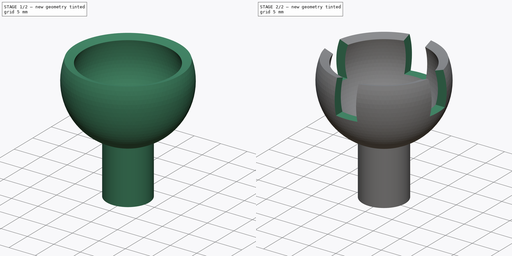
[diagram: build sequence overview — one tinted view per stage of 2, left to right]
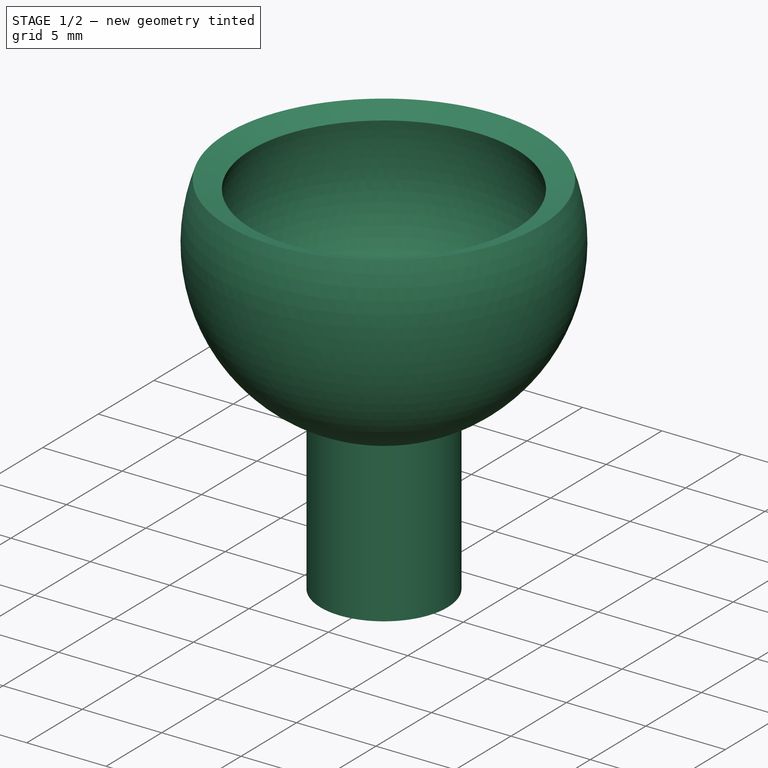
[diagram: stage 1 of 2 — iso view after this stage's code; geometry added in this stage tinted green]
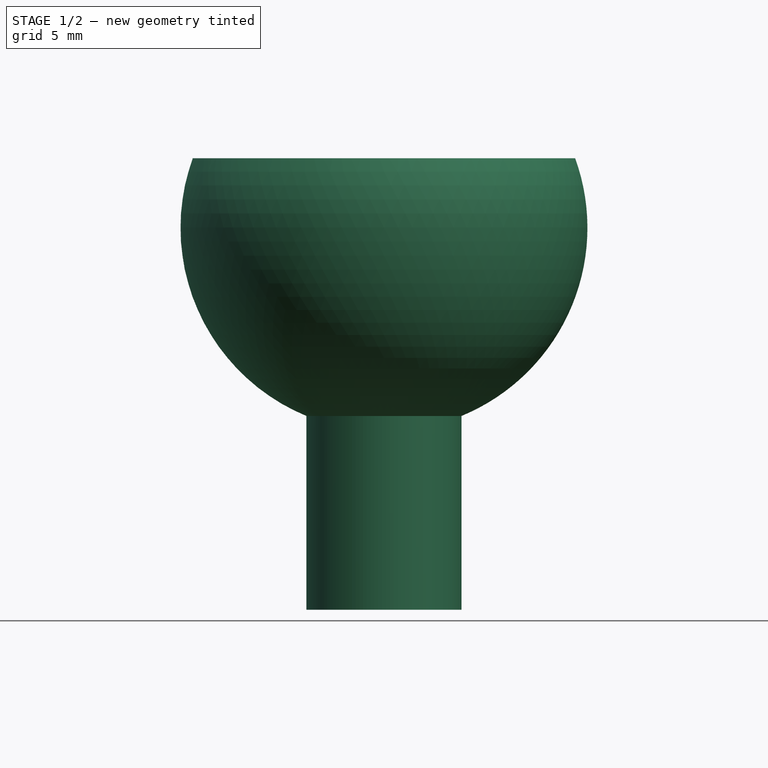
[diagram: stage 1 of 2 — front view after this stage's code; geometry added in this stage tinted green]
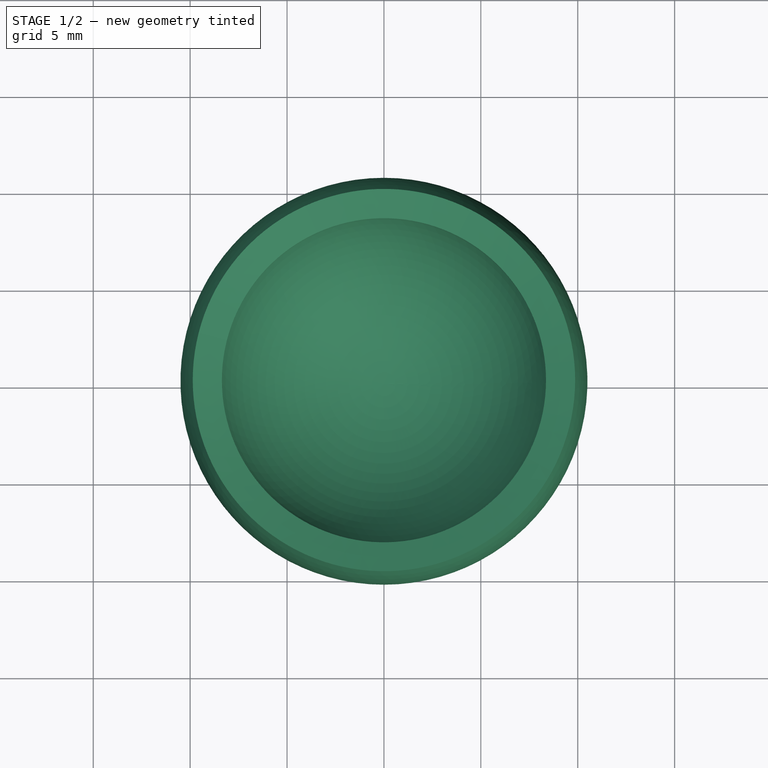
[diagram: stage 1 of 2 — top view after this stage's code; geometry added in this stage tinted green]
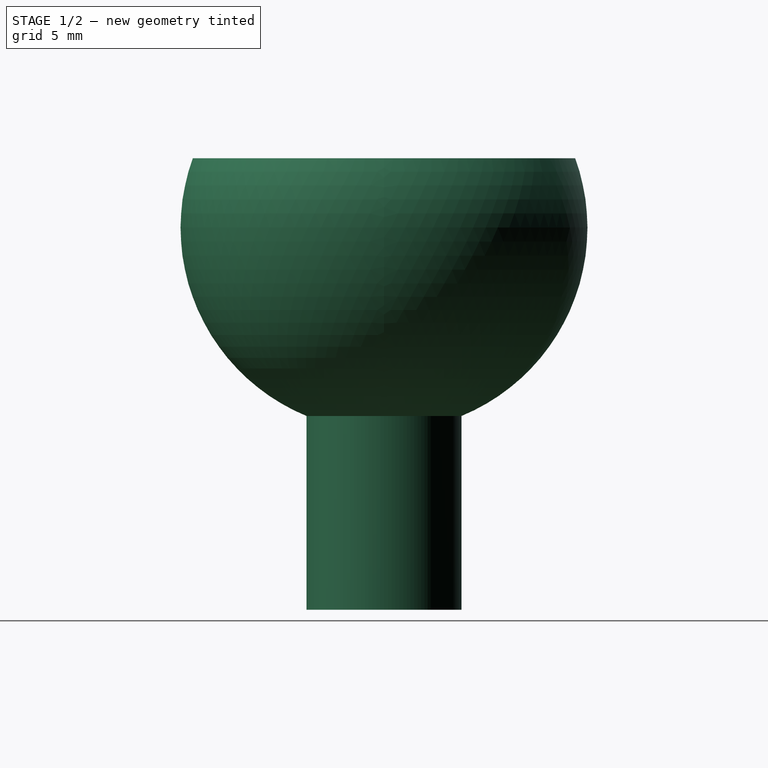
[diagram: stage 1 of 2 — right view after this stage's code; geometry added in this stage tinted green]
FCSTD DOCUMENT  (FreeCAD 0.19R24291 (Git))
Label: Ball_joint1
License: All rights reserved
LicenseURL: http://en.wikipedia.org/wiki/All_rights_reserved
objects: Sketcher::SketchObject×2, PartDesign::Revolution×1, PartDesign::Plane×1, PartDesign::Pocket×1, PartDesign::Body×1
note: 8 computed .brp shape members not serialized (recipe doc carries the construction recipe); baked Part::Feature solids carry a one-line shape summary decoded from their .brp

FEATURE [Sketcher::SketchObject] Sketch
  FullyConstrained = false
  MapMode = 5
  Placement = pos=(0,0,0) rot=(1,0,0;1.5708rad)
  Support = -> [XZ_Plane]
  sketch-geometry (9):
    g0: LineSegment StartX=0 StartY=0 StartZ=0 EndX=4 EndY=0 EndZ=0
    g1: LineSegment StartX=4 StartY=0 StartZ=0 EndX=4 EndY=10 EndZ=0
    g2: ArcOfCircle CenterX=0 CenterY=19.7082 CenterZ=0 NormalX=0 NormalY=0 NormalZ=1 AngleXU=0 Radius=10.5 StartAngle=5.10322 EndAngle=6.63225
    g3: ArcOfCircle CenterX=0 CenterY=19.7082 CenterZ=0 NormalX=0 NormalY=0 NormalZ=1 AngleXU=0 Radius=8.9 StartAngle=4.71239 EndAngle=6.63225
    g4: LineSegment StartX=0 StartY=19.7082 StartZ=0 EndX=9.86677 EndY=23.2995 EndZ=0
    g5: LineSegment StartX=0 StartY=19.7082 StartZ=0 EndX=8.12528 EndY=19.7082 EndZ=0
    g6: LineSegment StartX=0 StartY=0 StartZ=0 EndX=0 EndY=10.8082 EndZ=0
    g7: GeomPoint X=0 Y=9.20824 Z=0
    g8: LineSegment StartX=9.86677 StartY=23.2995 StartZ=0 EndX=8.36326 EndY=22.7522 EndZ=0
  constraints (24):
    c: Coincident(g0,g-1)
    c: Horizontal(g0)
    c: Coincident(g1,g0)
    c: Vertical(g1)
    c: PointOnObject(g2,g-2)
    c: Coincident(g3,g2)
    c: Coincident(g4,g2)
    c: Coincident(g5,g2)
    c: Horizontal(g5)
    c: Radius(g3) = 8.9
    c: Radius(g2) = 10.5
    c: Angle(g5,g4) = 0.349066
    c: DistanceY(g1,g1) = 10
    c: DistanceX(g0,g0) = 4
    c: Coincident(g6,g0)
    c: Vertical(g6)
    c: PointOnObject(g7,g6)
    c: PointOnObject(g7,g2)
    c: Coincident(g8,g4)
    c: PointOnObject(g8,g4)
    c: Coincident(g3,g6)
    c: Coincident(g3,g8)
    c: Coincident(g2,g8)
    c: Coincident(g2,g1)
FEATURE [PartDesign::Revolution] Revolution
  Angle = 360
  Axis = (0,-2e-16,1)
  Base = (0,0,0)
  Placement = pos=(0,0,0) rot=(1,0,0;1.5708rad)
  Profile = -> Sketch
  ReferenceAxis = -> Sketch [V_Axis]
  Reversed = true
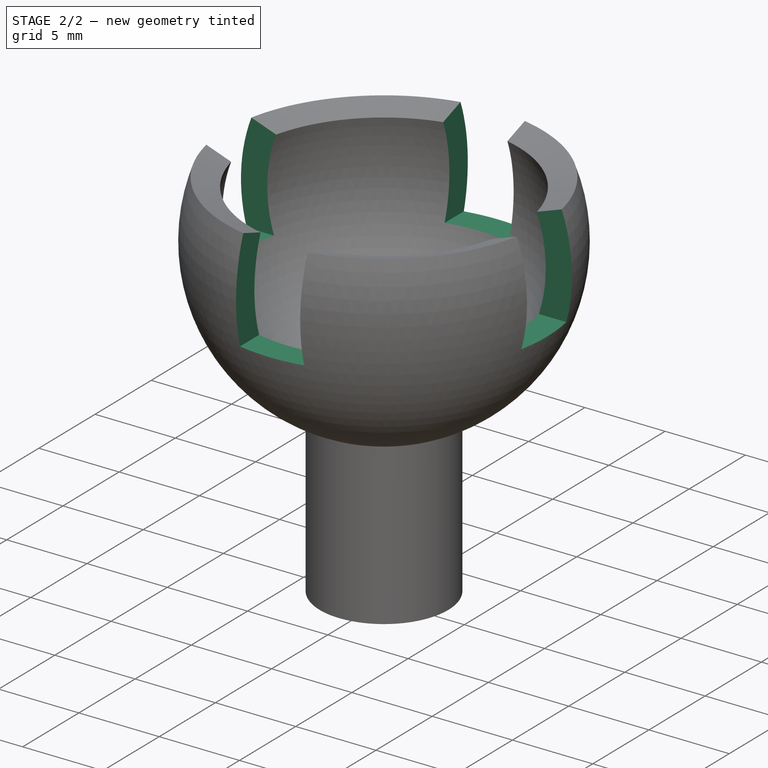
[diagram: stage 2 of 2 — iso view after this stage's code; geometry added in this stage tinted green]
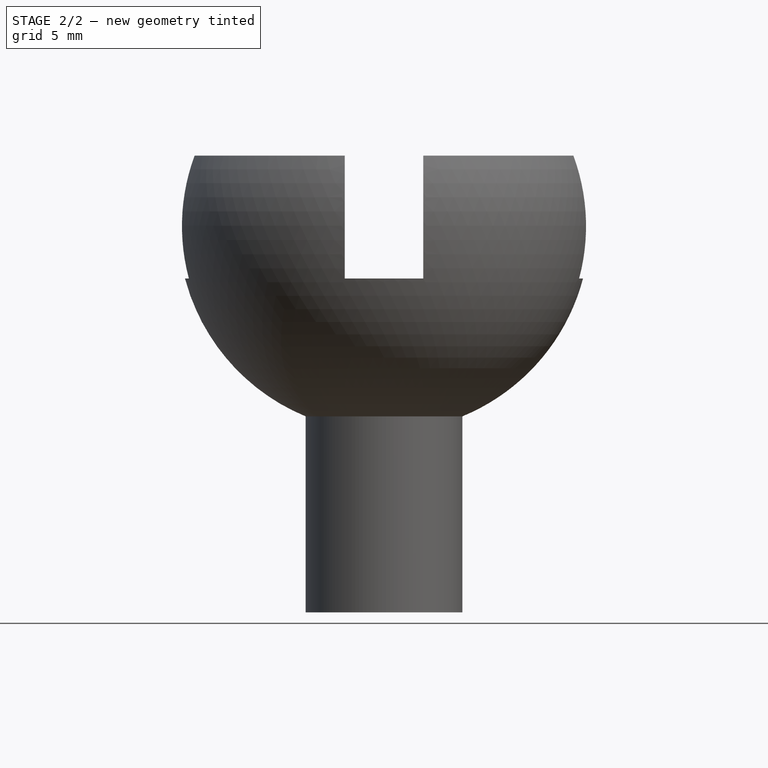
[diagram: stage 2 of 2 — front view after this stage's code; geometry added in this stage tinted green]
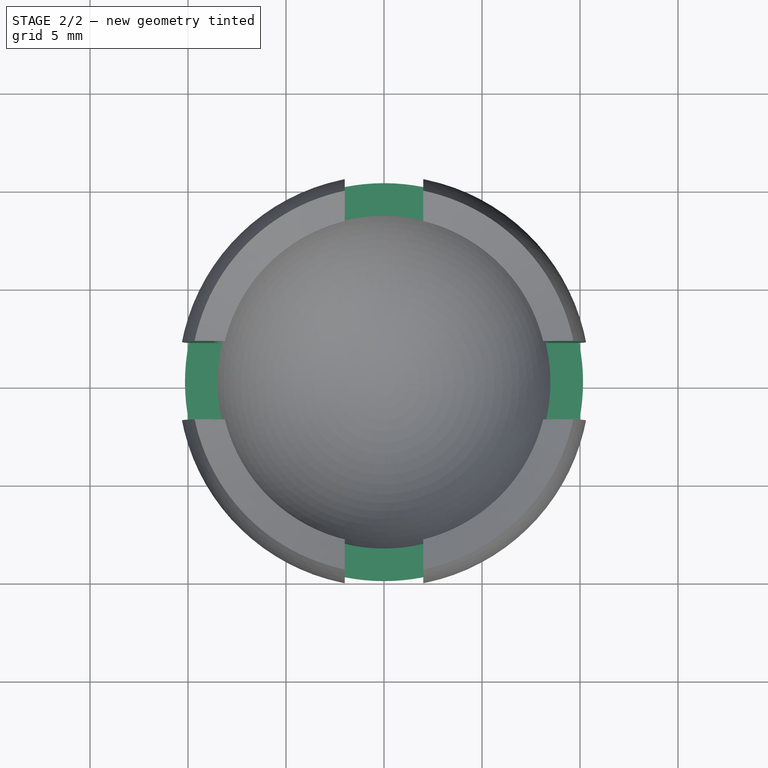
[diagram: stage 2 of 2 — top view after this stage's code; geometry added in this stage tinted green]
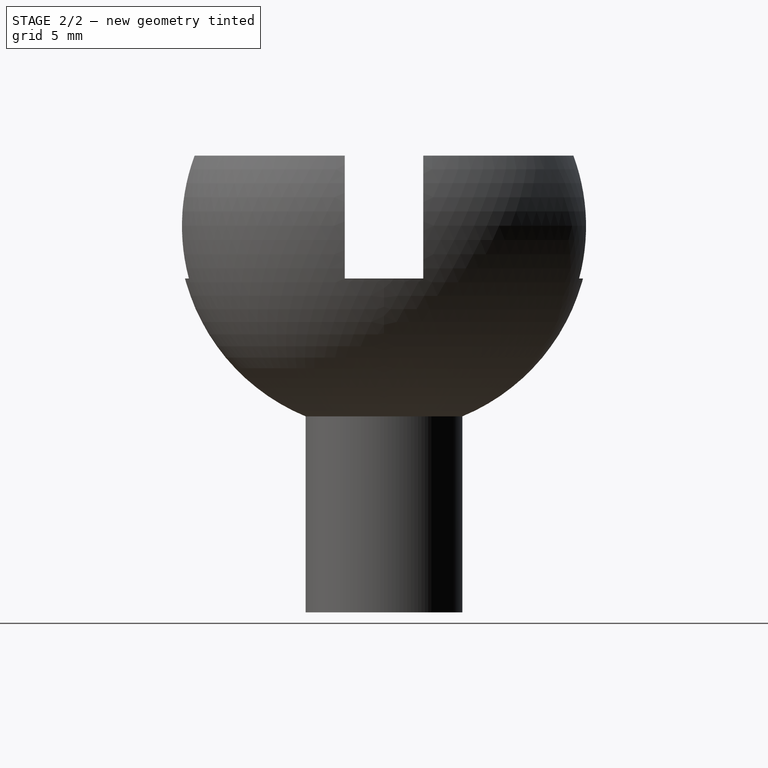
[diagram: stage 2 of 2 — right view after this stage's code; geometry added in this stage tinted green]
FEATURE [PartDesign::Plane] DatumPlane
  AttachmentOffset = pos=(0,0,1) rot=(0,0,1;0rad)
  Length = 60
  MapMode = 45
  Placement = pos=(-1.9e-15,-5.4e-15,24.0334) rot=(0,0,1;0rad)
  ResizeMode = 0
  Support = -> [Revolution]
  Width = 60
FEATURE [Sketcher::SketchObject] Sketch001
  FullyConstrained = true
  MapMode = 5
  Placement = pos=(-1.9e-15,-5.4e-15,24.0334) rot=(0,0,1;0rad)
  Support = -> [DatumPlane]
  sketch-geometry (20):
    g0: LineSegment StartX=-2 StartY=12 StartZ=0 EndX=2 EndY=12 EndZ=0
    g1: LineSegment StartX=2 StartY=12 StartZ=0 EndX=2 EndY=6 EndZ=0
    g2: LineSegment StartX=2 StartY=6 StartZ=0 EndX=-2 EndY=6 EndZ=0
    g3: LineSegment StartX=-2 StartY=6 StartZ=0 EndX=-2 EndY=12 EndZ=0
    g4: LineSegment StartX=6 StartY=2 StartZ=0 EndX=12 EndY=2 EndZ=0
    g5: LineSegment StartX=12 StartY=2 StartZ=0 EndX=12 EndY=-2 EndZ=0
    g6: LineSegment StartX=12 StartY=-2 StartZ=0 EndX=6 EndY=-2 EndZ=0
    g7: LineSegment StartX=6 StartY=-2 StartZ=0 EndX=6 EndY=2 EndZ=0
    g8: LineSegment StartX=-12 StartY=2 StartZ=0 EndX=-6 EndY=2 EndZ=0
    g9: LineSegment StartX=-6 StartY=2 StartZ=0 EndX=-6 EndY=-2 EndZ=0
    g10: LineSegment StartX=-6 StartY=-2 StartZ=0 EndX=-12 EndY=-2 EndZ=0
    g11: LineSegment StartX=-12 StartY=-2 StartZ=0 EndX=-12 EndY=2 EndZ=0
    g12: LineSegment StartX=-2 StartY=-6 StartZ=0 EndX=2 EndY=-6 EndZ=0
    g13: LineSegment StartX=2 StartY=-6 StartZ=0 EndX=2 EndY=-12 EndZ=0
    g14: LineSegment StartX=2 StartY=-12 StartZ=0 EndX=-2 EndY=-12 EndZ=0
    g15: LineSegment StartX=-2 StartY=-12 StartZ=0 EndX=-2 EndY=-6 EndZ=0
    g16: LineSegment StartX=0 StartY=0 StartZ=0 EndX=-6 EndY=0 EndZ=0
    g17: LineSegment StartX=0 StartY=6 StartZ=0 EndX=0 EndY=0 EndZ=0
    g18: LineSegment StartX=6 StartY=0 StartZ=0 EndX=0 EndY=0 EndZ=0
    g19: LineSegment StartX=0 StartY=-6 StartZ=0 EndX=0 EndY=0 EndZ=0
  constraints (56):
    c: Coincident(g0,g1)
    c: Coincident(g1,g2)
    c: Coincident(g2,g3)
    c: Coincident(g3,g0)
    c: Horizontal(g0)
    c: Vertical(g1)
    c: Vertical(g3)
    c: Coincident(g4,g5)
    c: Coincident(g5,g6)
    c: Coincident(g6,g7)
    c: Coincident(g7,g4)
    c: Horizontal(g4)
    c: Horizontal(g6)
    c: Vertical(g5)
    c: Coincident(g8,g9)
    c: Coincident(g9,g10)
    c: Coincident(g10,g11)
    c: Coincident(g11,g8)
    c: Horizontal(g8)
    c: Horizontal(g10)
    c: Vertical(g11)
    c: Coincident(g12,g13)
    c: Coincident(g13,g14)
    c: Coincident(g14,g15)
    c: Coincident(g15,g12)
    c: Horizontal(g14)
    c: Vertical(g13)
    c: Vertical(g15)
    c: Equal(g15,g8)
    c: Equal(g8,g1)
    c: Equal(g1,g6)
    c: Equal(g9,g2)
    c: Equal(g2,g7)
    c: Equal(g7,g12)
    c: Symmetric(g9,g8,g-1)
    c: Symmetric(g2,g1,g-2)
    c: Symmetric(g4,g6,g-1)
    c: Symmetric(g12,g12,g-2)
    c: Coincident(g16,g-1)
    c: Horizontal(g16)
    c: PointOnObject(g16,g9)
    c: PointOnObject(g17,g2)
    c: Coincident(g17,g-1)
    c: Vertical(g17)
    c: PointOnObject(g18,g7)
    c: Coincident(g18,g-1)
    c: Horizontal(g18)
    c: PointOnObject(g19,g12)
    c: Coincident(g19,g-1)
    c: Vertical(g19)
    c: Equal(g17,g16)
    c: Equal(g16,g19)
    c: Equal(g19,g18)
    c: DistanceX(g16,g16) = 6
    c: DistanceX(g10,g10) = 6
    c: DistanceY(g11,g11) = 4
FEATURE [PartDesign::Pocket] Pocket
  BaseFeature = -> Revolution
  Length = 7
  Length2 = 100
  Placement = pos=(0,0,0) rot=(1,0,0;1.5708rad)
  Profile = -> Sketch001
  Type = 0
FEATURE [PartDesign::Body] Body
  Group = -> [Sketch,Revolution,DatumPlane,Sketch001,Pocket]
  Origin = -> Origin
  Tip = -> Pocket
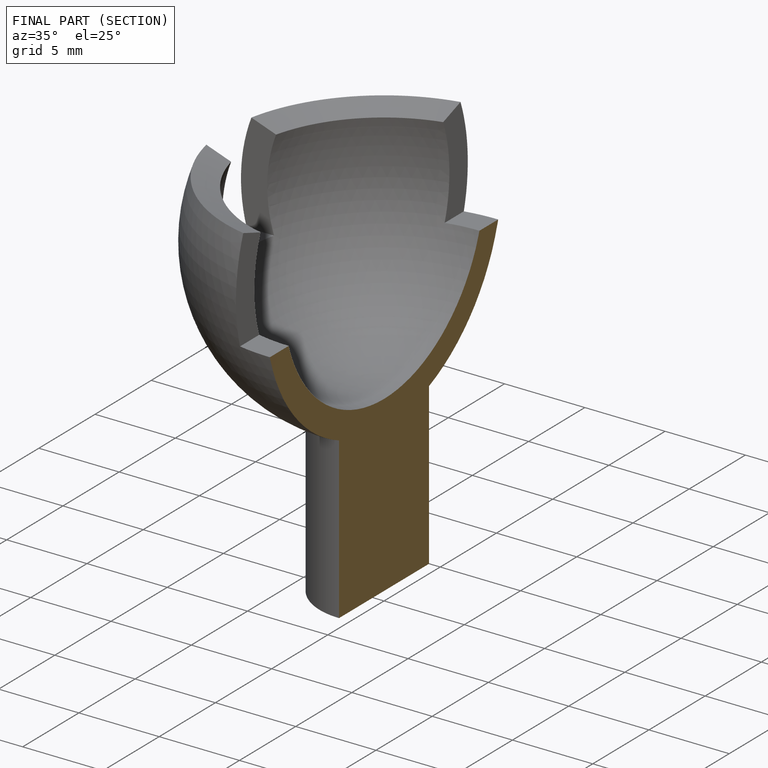
[diagram: finished part — half-section view (interior)]
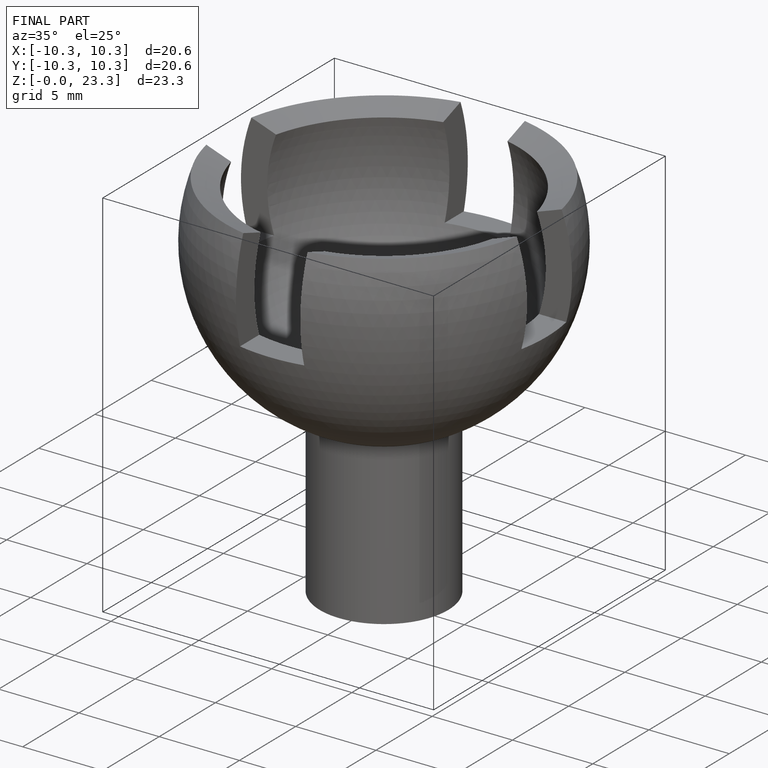
[diagram: finished part — iso view with bounding-box wireframe]
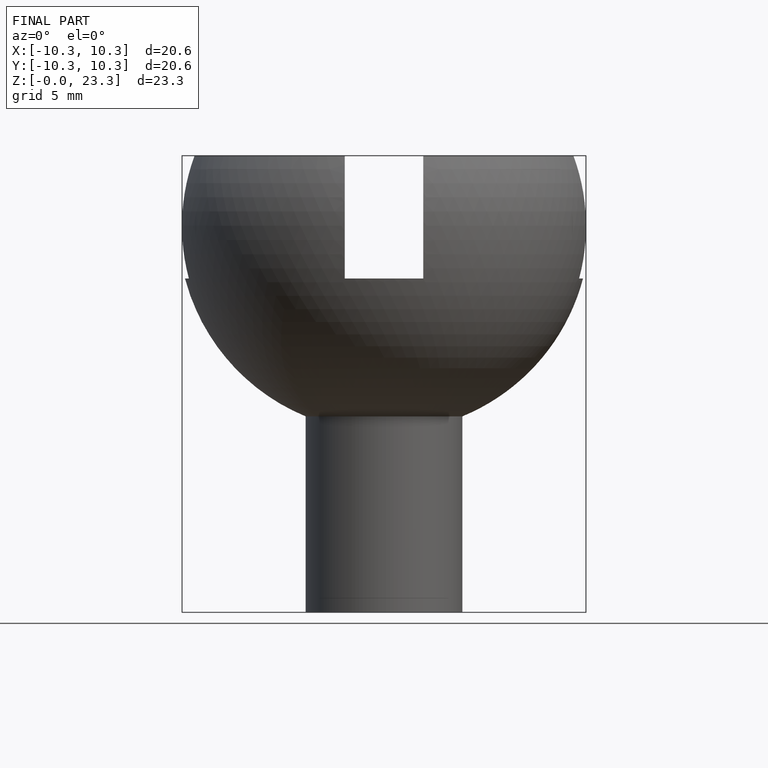
[diagram: finished part — front view with bounding-box wireframe]
